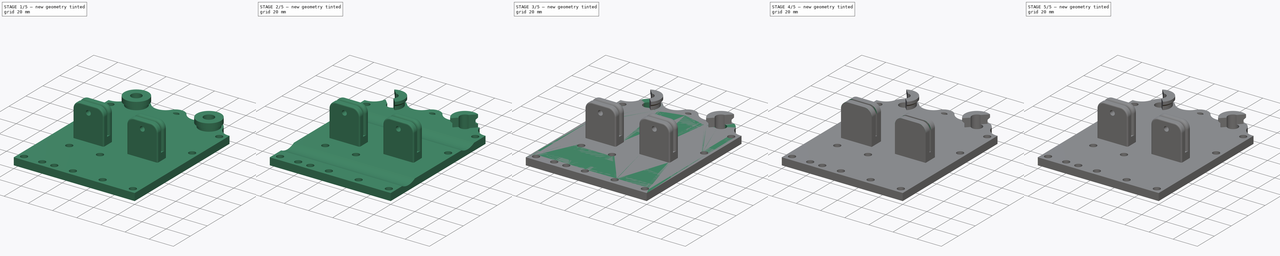
[diagram: build sequence overview — one tinted view per stage of 5, left to right]
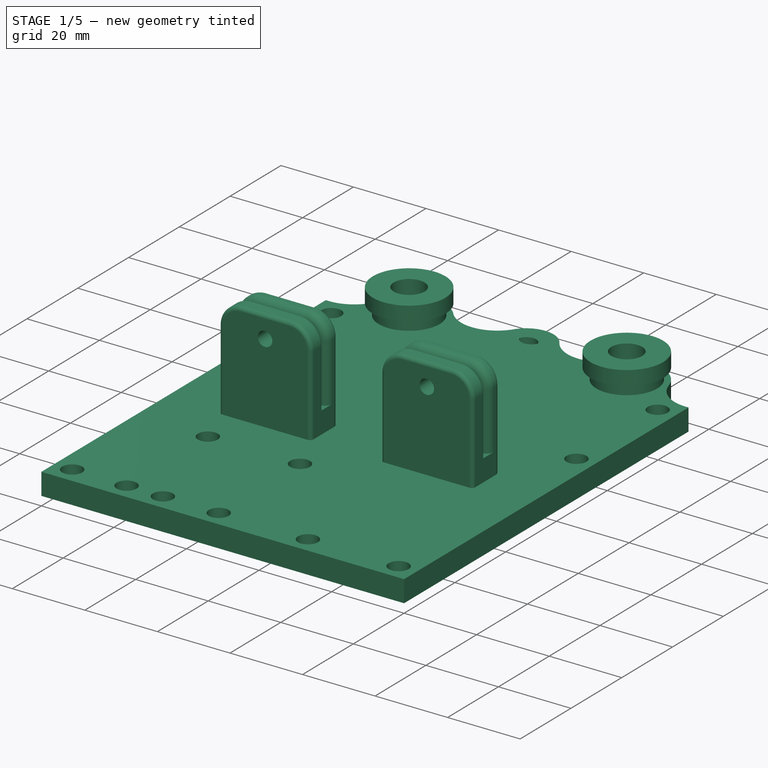
[diagram: stage 1 of 5 — iso view after this stage's code; geometry added in this stage tinted green]
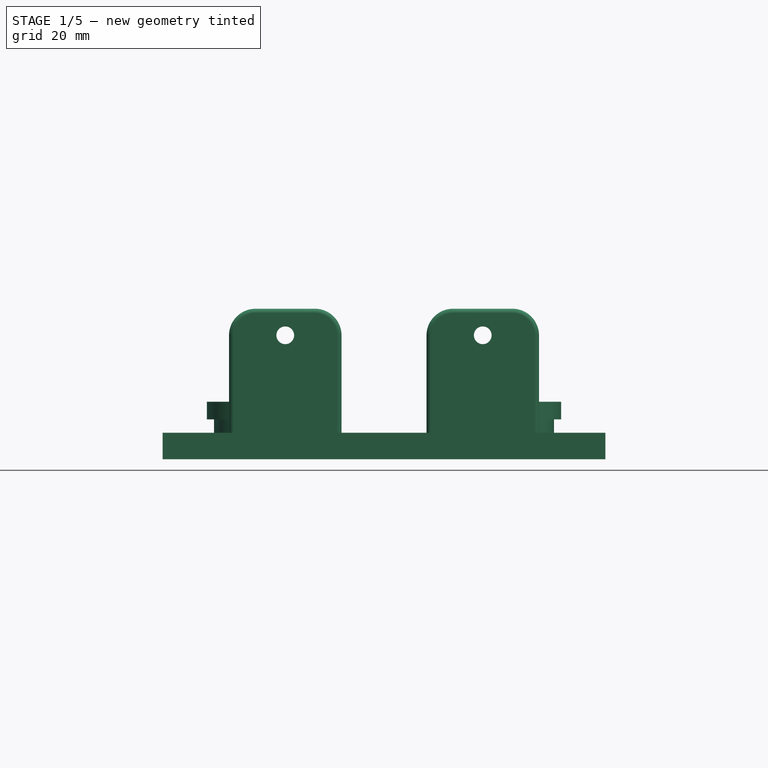
[diagram: stage 1 of 5 — front view after this stage's code; geometry added in this stage tinted green]
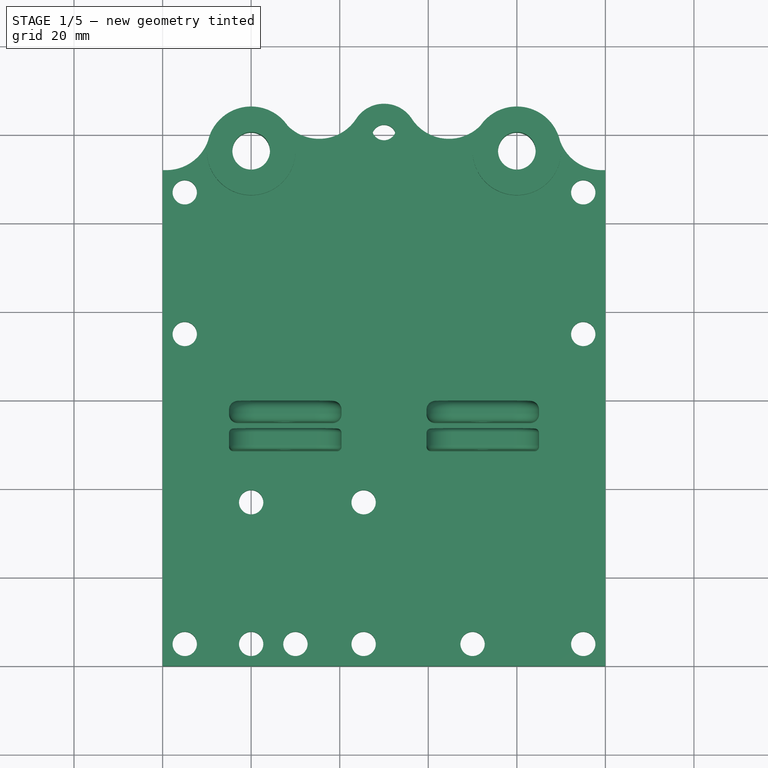
[diagram: stage 1 of 5 — top view after this stage's code; geometry added in this stage tinted green]
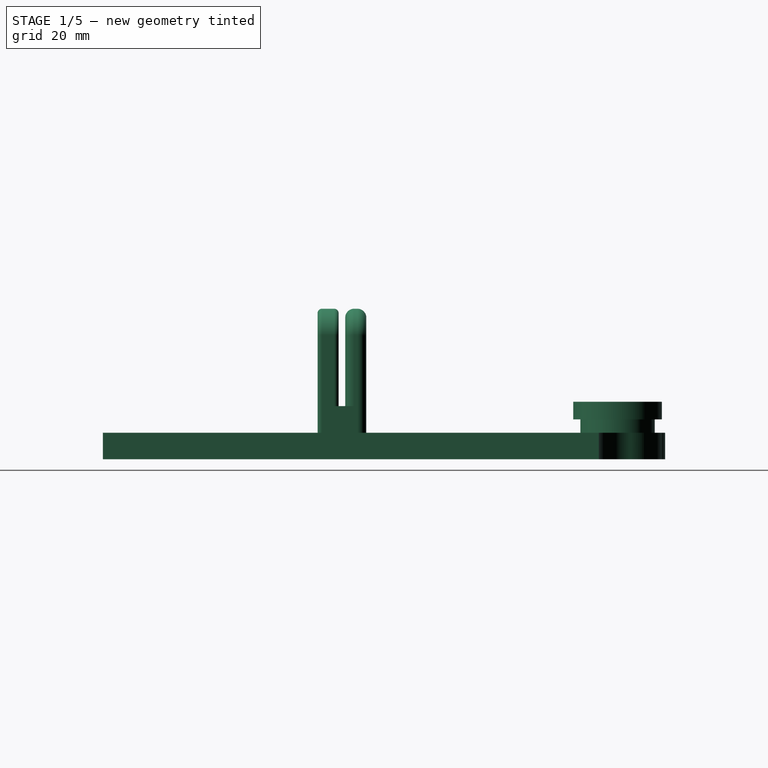
[diagram: stage 1 of 5 — right view after this stage's code; geometry added in this stage tinted green]
FCSTD DOCUMENT  (FreeCAD 0.16R5861 (Git))
Label: x_carriage_TAZ6_v0.3
License: All rights reserved
LicenseURL: http://en.wikipedia.org/wiki/All_rights_reserved
objects: Sketcher::SketchObject×15, PartDesign::Pocket×9, PartDesign::Pad×6, PartDesign::Fillet×6, Part::Feature×3, PartDesign::Chamfer×1, PartDesign::LinearPattern×1
note: 56 computed .brp shape members not serialized (recipe doc carries the construction recipe); baked Part::Feature solids carry a one-line shape summary decoded from their .brp

FEATURE [Part::Feature] Fillet003001  label="Fillet004"
  shape: bbox 100 x 127 x 34.86 mm, 99 faces (baked)
FEATURE [PartDesign::Fillet] Fillet003002
  Base = -> Fillet003001 [Edge63,Edge50,Edge54,Edge67]
  Radius = 10
FEATURE [Sketcher::SketchObject] Sketch006
  ExternalGeometry = -> [Fillet003002]
  Placement = pos=(0,0,6) rot=(0,0,1;0rad)
  Support = -> Fillet003002 [Face1]
  sketch-geometry (4):
    g0: Circle CenterX=20 CenterY=116.25 CenterZ=0 NormalX=0 NormalY=0 NormalZ=1 Radius=4.25
    g1: Circle CenterX=20 CenterY=116.25 CenterZ=0 NormalX=0 NormalY=0 NormalZ=1 Radius=8.4
    g2: Circle CenterX=80 CenterY=116.25 CenterZ=0 NormalX=0 NormalY=0 NormalZ=1 Radius=4.25
    g3: Circle CenterX=80 CenterY=116.25 CenterZ=0 NormalX=0 NormalY=0 NormalZ=1 Radius=8.4
  constraints (8):
    c: Coincident(g0,g-3)
    c: PointOnObject(g-3,g0)
    c: Coincident(g1,g0)
    c: Coincident(g2,g-4)
    c: PointOnObject(g-4,g2)
    c: Coincident(g3,g2)
    c: Equal(g3,g1)
    c: Radius(g3) = 8.4
FEATURE [PartDesign::Pad] Pad002002
  Length = 3
  Length2 = 100
  Sketch = -> Sketch006
  Type = 0
FEATURE [Sketcher::SketchObject] Sketch007
  ExternalGeometry = -> [Pad002002]
  Placement = pos=(0,0,9) rot=(0,0,1;0rad)
  Support = -> Pad002002 [Face84]
  sketch-geometry (4):
    g0: Circle CenterX=20 CenterY=116.25 CenterZ=0 NormalX=0 NormalY=0 NormalZ=1 Radius=4.25
    g1: Circle CenterX=20 CenterY=116.25 CenterZ=0 NormalX=0 NormalY=0 NormalZ=1 Radius=10
    g2: Circle CenterX=80 CenterY=116.25 CenterZ=0 NormalX=0 NormalY=0 NormalZ=1 Radius=4.25
    g3: Circle CenterX=80 CenterY=116.25 CenterZ=0 NormalX=0 NormalY=0 NormalZ=1 Radius=10
  constraints (8):
    c: Coincident(g0,g-3)
    c: Coincident(g1,g0)
    c: Coincident(g2,g-4)
    c: Coincident(g3,g2)
    c: Equal(g2,g-4)
    c: Equal(g-4,g0)
    c: Equal(g1,g3)
    c: Radius(g3) = 10
FEATURE [PartDesign::Pad] Pad002003
  Length = 4
  Length2 = 100
  Sketch = -> Sketch007
  Type = 0
FEATURE [Part::Feature] Pocket007001  label="Pocket008"
  shape: bbox 100 x 127 x 34.86 mm, 130 faces (baked)
FEATURE [Sketcher::SketchObject] Sketch014
  Placement = pos=(0,0,0) rot=(1,0,0;3.14159rad)
  Support = -> Pocket007001 [Face121]
  sketch-geometry (4):
    g0: LineSegment StartX=0 StartY=-9.5 StartZ=0 EndX=100 EndY=-9.5 EndZ=0
    g1: LineSegment StartX=100 StartY=-9.5 StartZ=0 EndX=100 EndY=-10.5 EndZ=0
    g2: LineSegment StartX=100 StartY=-10.5 StartZ=0 EndX=0 EndY=-10.5 EndZ=0
    g3: LineSegment StartX=0 StartY=-10.5 StartZ=0 EndX=0 EndY=-9.5 EndZ=0
  constraints (12):
    c: Coincident(g0,g1)
    c: Coincident(g1,g2)
    c: Coincident(g2,g3)
    c: Coincident(g3,g0)
    c: Horizontal(g0)
    c: Horizontal(g2)
    c: Vertical(g1)
    c: Vertical(g3)
    c: PointOnObject(g0,g-2)
    c: DistanceX(g0) = 100
    c: DistanceY(g1) = -1
    c: DistanceY(g-1,g0) = -9.5
FEATURE [PartDesign::Pocket] Pocket007002
  Length = 0.4
  Sketch = -> Sketch014
  Type = 0
FEATURE [PartDesign::LinearPattern] LinearPattern
  Direction = -> Sketch014 [V_Axis]
  Length = 110
  Occurrences = 12
  Originals = -> [Pocket007002]
  Reversed = true
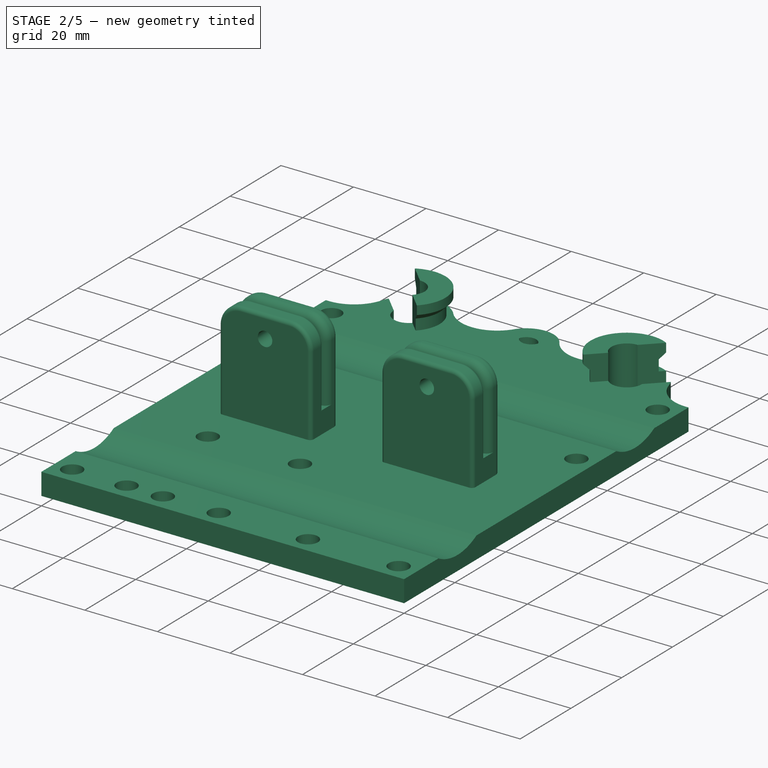
[diagram: stage 2 of 5 — iso view after this stage's code; geometry added in this stage tinted green]
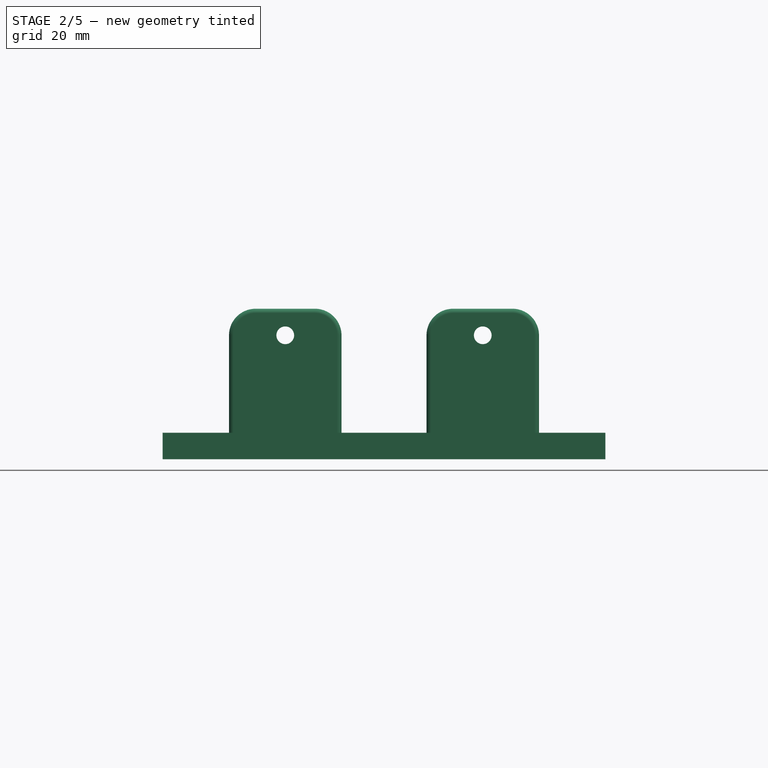
[diagram: stage 2 of 5 — front view after this stage's code; geometry added in this stage tinted green]
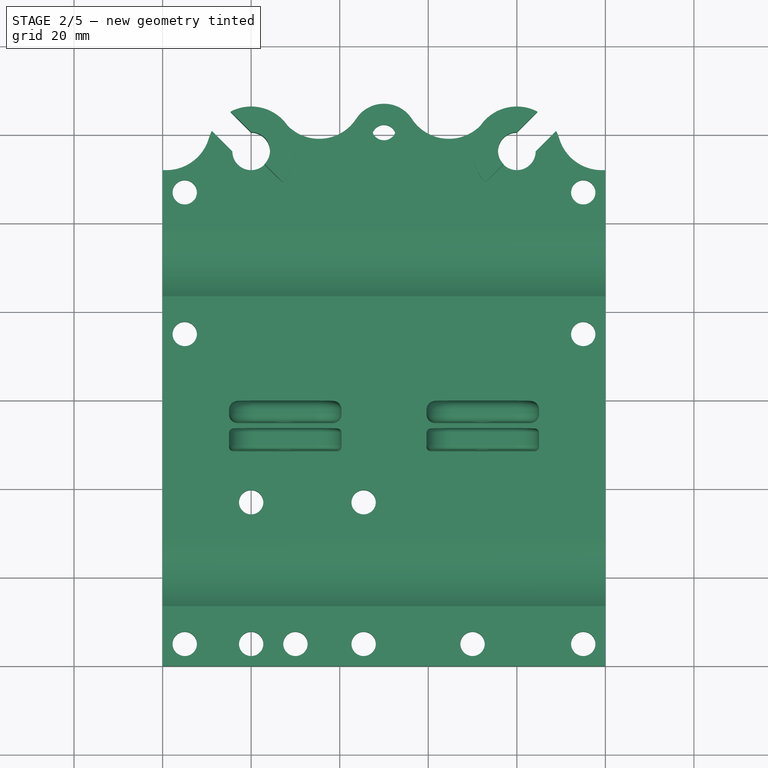
[diagram: stage 2 of 5 — top view after this stage's code; geometry added in this stage tinted green]
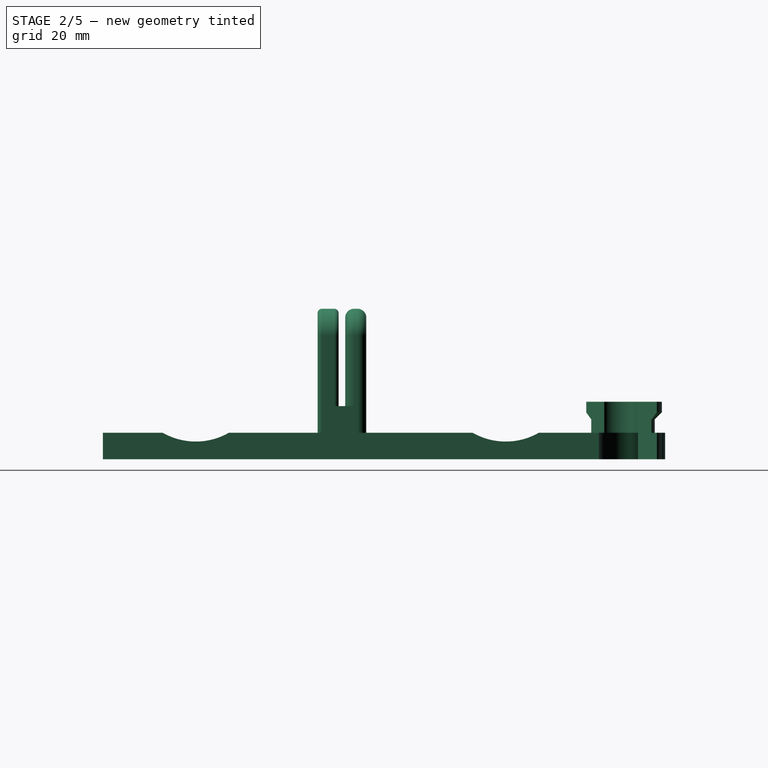
[diagram: stage 2 of 5 — right view after this stage's code; geometry added in this stage tinted green]
FEATURE [PartDesign::Chamfer] Chamfer
  Base = -> Pad002003 [Edge244,Edge245]
  Size = 1.59
FEATURE [Sketcher::SketchObject] Sketch008
  ExternalGeometry = -> [Chamfer]
  Placement = pos=(0,0,13) rot=(0,0,1;0rad)
  Support = -> Chamfer [Face113]
  sketch-geometry (8):
    g0: LineSegment StartX=0 StartY=106.25 StartZ=0 EndX=30 EndY=106.25 EndZ=0
    g1: LineSegment StartX=30 StartY=106.25 StartZ=0 EndX=10 EndY=126.25 EndZ=0
    g2: LineSegment StartX=10 StartY=126.25 StartZ=0 EndX=0 EndY=126.25 EndZ=0
    g3: LineSegment StartX=0 StartY=126.25 StartZ=0 EndX=0 EndY=106.25 EndZ=0
    g4: LineSegment StartX=100 StartY=106.25 StartZ=0 EndX=70 EndY=106.25 EndZ=0
    g5: LineSegment StartX=70 StartY=106.25 StartZ=0 EndX=90 EndY=126.25 EndZ=0
    g6: LineSegment StartX=90 StartY=126.25 StartZ=0 EndX=100 EndY=126.25 EndZ=0
    g7: LineSegment StartX=100 StartY=126.25 StartZ=0 EndX=100 EndY=106.25 EndZ=0
  constraints (24):
    c: Coincident(g0,g1)
    c: Coincident(g1,g2)
    c: Coincident(g2,g3)
    c: Coincident(g3,g0)
    c: Horizontal(g0)
    c: Horizontal(g2)
    c: Vertical(g3)
    c: PointOnObject(g0,g-2)
    c: Coincident(g4,g5)
    c: Coincident(g5,g6)
    c: Coincident(g6,g7)
    c: Coincident(g7,g4)
    c: Horizontal(g4)
    c: Horizontal(g6)
    c: Vertical(g7)
    c: PointOnObject(g4,g-3)
    c: Angle(g1,g0) = 0.785398
    c: Angle(g4,g5) = 0.785398
    c: PointOnObject(g-4,g5)
    c: PointOnObject(g-5,g1)
    c: Tangent(g0,g-5)
    c: Tangent(g4,g-4)
    c: Equal(g7,g3)
    c: DistanceY(g7) = -20
FEATURE [PartDesign::Pocket] Pocket003
  Length = 7
  Sketch = -> Sketch008
  Type = 0
FEATURE [Sketcher::SketchObject] Sketch009
  ExternalGeometry = -> [Pocket003]
  Placement = pos=(0,0,13) rot=(0,0,1;0rad)
  Support = -> Pocket003 [Face9]
  sketch-geometry (8):
    g0: LineSegment StartX=22.1213 StartY=118.371 StartZ=0 EndX=17.8787 EndY=114.129 EndZ=0
    g1: LineSegment StartX=17.8787 StartY=114.129 StartZ=0 EndX=7.27208 EndY=124.735 EndZ=0
    g2: LineSegment StartX=7.27208 StartY=124.735 StartZ=0 EndX=11.5147 EndY=128.978 EndZ=0
    g3: LineSegment StartX=11.5147 StartY=128.978 StartZ=0 EndX=22.1213 EndY=118.371 EndZ=0
    g4: LineSegment StartX=77.8787 StartY=118.371 StartZ=0 EndX=82.1213 EndY=114.129 EndZ=0
    g5: LineSegment StartX=82.1213 StartY=114.129 StartZ=0 EndX=92.7279 EndY=124.735 EndZ=0
    g6: LineSegment StartX=92.7279 StartY=124.735 StartZ=0 EndX=88.4853 EndY=128.978 EndZ=0
    g7: LineSegment StartX=88.4853 StartY=128.978 StartZ=0 EndX=77.8787 EndY=118.371 EndZ=0
  constraints (24):
    c: Coincident(g0,g1)
    c: Coincident(g1,g2)
    c: Coincident(g2,g3)
    c: Coincident(g3,g0)
    c: Coincident(g4,g5)
    c: Coincident(g5,g6)
    c: Coincident(g6,g7)
    c: Coincident(g7,g4)
    c: Parallel(g7,g-4)
    c: Parallel(g-4,g5)
    c: Perpendicular(g7,g4)
    c: Perpendicular(g6,g7)
    c: Parallel(g-3,g1)
    c: Perpendicular(g0,g3)
    c: Perpendicular(g0,g1)
    c: Perpendicular(g2,g1)
    c: Distance(g2) = 6
    c: Equal(g6,g2)
    c: PointOnObject(g-6,g4)
    c: PointOnObject(g-5,g0)
    c: Distance(g-5,g0) = 3
    c: Distance(g-6,g4) = 3
    c: Equal(g1,g7)
    c: Distance(g7) = 15
FEATURE [PartDesign::Pocket] Pocket004
  Length = 5
  Sketch = -> Sketch009
  Type = 1
FEATURE [Sketcher::SketchObject] Sketch010
  ExternalGeometry = -> [Pocket004]
  Placement = pos=(0,0,0) rot=(0.57735,-0.57735,-0.57735;2.0944rad)
  Support = -> Pocket004 [Face27]
  sketch-geometry (2):
    g0: Circle CenterX=-91 CenterY=19 CenterZ=0 NormalX=0 NormalY=0 NormalZ=1 Radius=15
    g1: Circle CenterX=-21 CenterY=19 CenterZ=0 NormalX=0 NormalY=0 NormalZ=1 Radius=15
  constraints (6):
    c: Equal(g1,g0)
    c: DistanceX(g-3,g0) = 21
    c: DistanceX(g-1,g1) = -21
    c: Radius(g0) = 15
    c: DistanceY(g-3,g0) = 13
    c: DistanceY(g-3,g1) = 13
FEATURE [PartDesign::Pocket] Pocket005
  Length = 5
  Sketch = -> Sketch010
  Type = 1
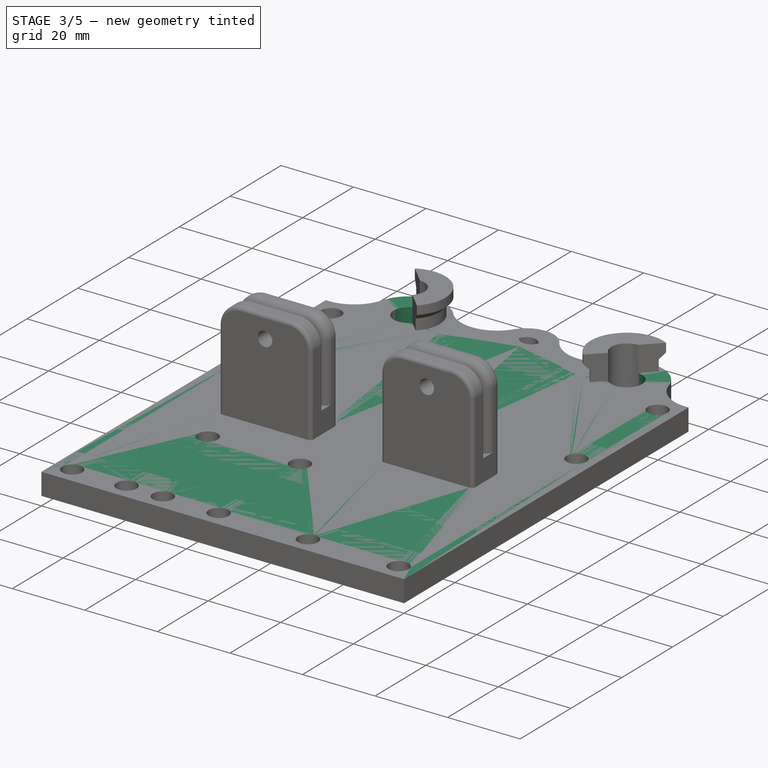
[diagram: stage 3 of 5 — iso view after this stage's code; geometry added in this stage tinted green]
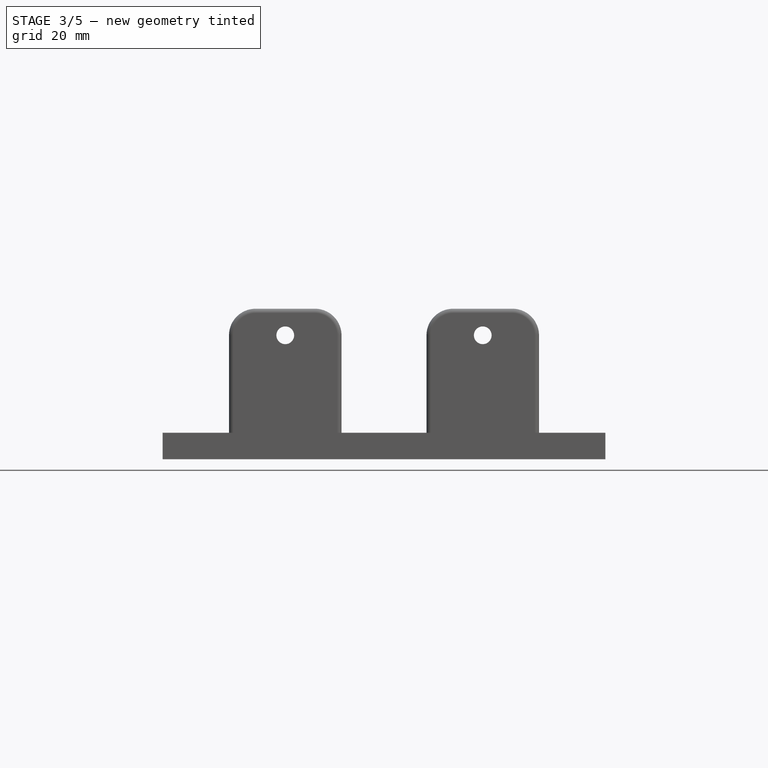
[diagram: stage 3 of 5 — front view after this stage's code; geometry added in this stage tinted green]
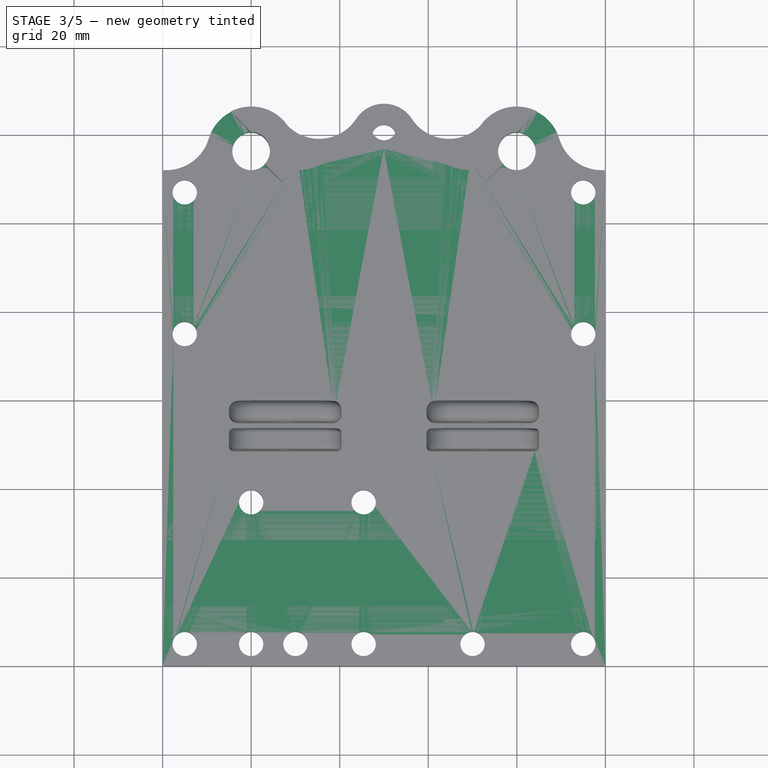
[diagram: stage 3 of 5 — top view after this stage's code; geometry added in this stage tinted green]
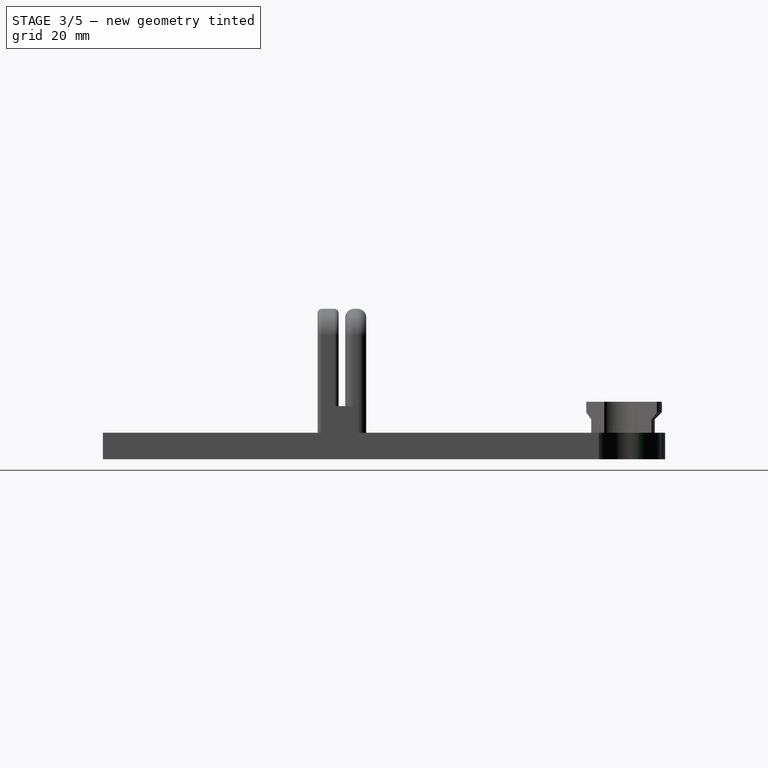
[diagram: stage 3 of 5 — right view after this stage's code; geometry added in this stage tinted green]
FEATURE [Part::Feature] Pad002001  label="Pad003"
  shape: bbox 100 x 127 x 34.49 mm, 99 faces (baked)
FEATURE [PartDesign::Fillet] Fillet003
  Base = -> Pad002001 [Edge60,Edge68]
  Radius = 13
FEATURE [Sketcher::SketchObject] Sketch011
  Placement = pos=(0,0,6) rot=(0,0,1;0rad)
  Support = -> Pocket005 [Face58]
  sketch-geometry (1):
    g0: Circle CenterX=0 CenterY=49 CenterZ=0 NormalX=0 NormalY=0 NormalZ=1 Radius=14
  constraints (3):
    c: PointOnObject(g0,g-2)
    c: Radius(g0) = 14
    c: DistanceY(g-1,g0) = 49
FEATURE [PartDesign::Pocket] Pocket006
  Length = 5
  Sketch = -> Sketch011
  Type = 1
FEATURE [PartDesign::Fillet] Fillet003003
  Base = -> Pocket006 [Edge116,Edge122]
  Radius = 11
FEATURE [Sketcher::SketchObject] Sketch012
  ExternalGeometry = -> [Fillet003003]
  Placement = pos=(0,0,6) rot=(0,0,1;0rad)
  Support = -> Fillet003003 [Face45]
  sketch-geometry (1):
    g0: Circle CenterX=50 CenterY=119.5 CenterZ=0 NormalX=0 NormalY=0 NormalZ=1 Radius=4
  constraints (2):
    c: Coincident(g0,g-3)
    c: Radius(g0) = 4
FEATURE [PartDesign::Pad] Pad002004
  Length = 6
  Length2 = 100
  Reversed = true
  Sketch = -> Sketch012
  Type = 0
FEATURE [Sketcher::SketchObject] Sketch013
  ExternalGeometry = -> [Pad002004]
  Placement = pos=(0,0,6) rot=(0,0,1;0rad)
  Support = -> Pad002004 [Face8]
  sketch-geometry (2):
    g0: LineSegment [constr] StartX=50 StartY=119.5 StartZ=0 EndX=50 EndY=121.5 EndZ=0
    g1: Circle CenterX=50 CenterY=121.5 CenterZ=0 NormalX=0 NormalY=0 NormalZ=1 Radius=2.75
  constraints (5):
    c: Coincident(g0,g-3)
    c: Vertical(g0)
    c: Coincident(g1,g0)
    c: Equal(g-3,g1)
    c: DistanceY(g0) = 2
FEATURE [PartDesign::Pocket] Pocket007
  Length = 5
  Sketch = -> Sketch013
  Type = 1
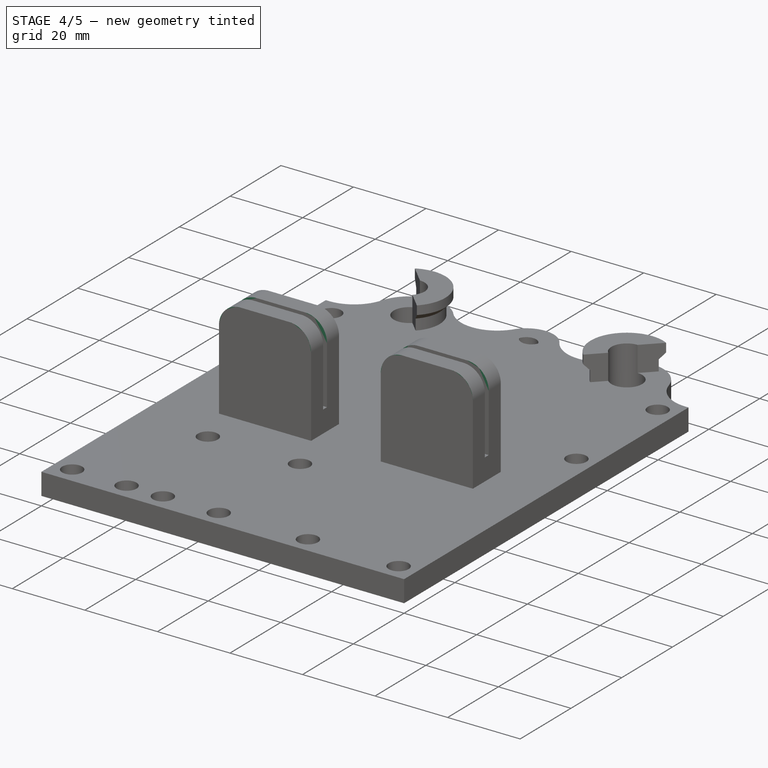
[diagram: stage 4 of 5 — iso view after this stage's code; geometry added in this stage tinted green]
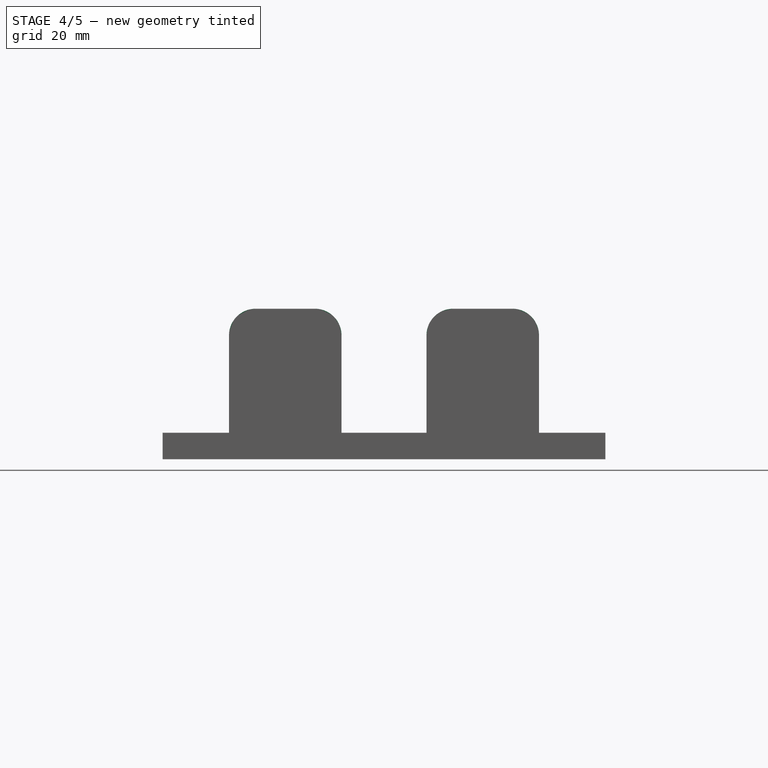
[diagram: stage 4 of 5 — front view after this stage's code; geometry added in this stage tinted green]
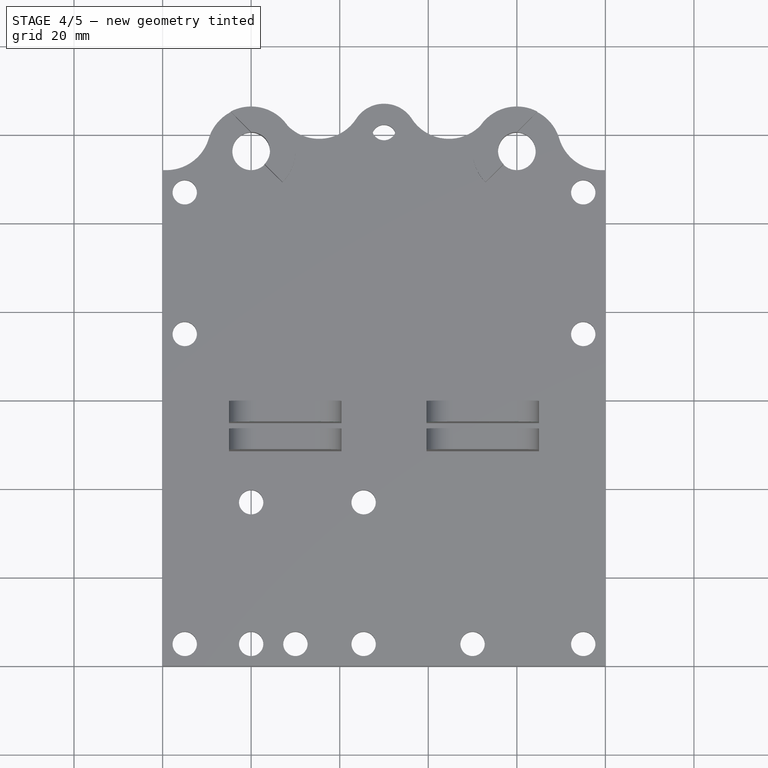
[diagram: stage 4 of 5 — top view after this stage's code; geometry added in this stage tinted green]
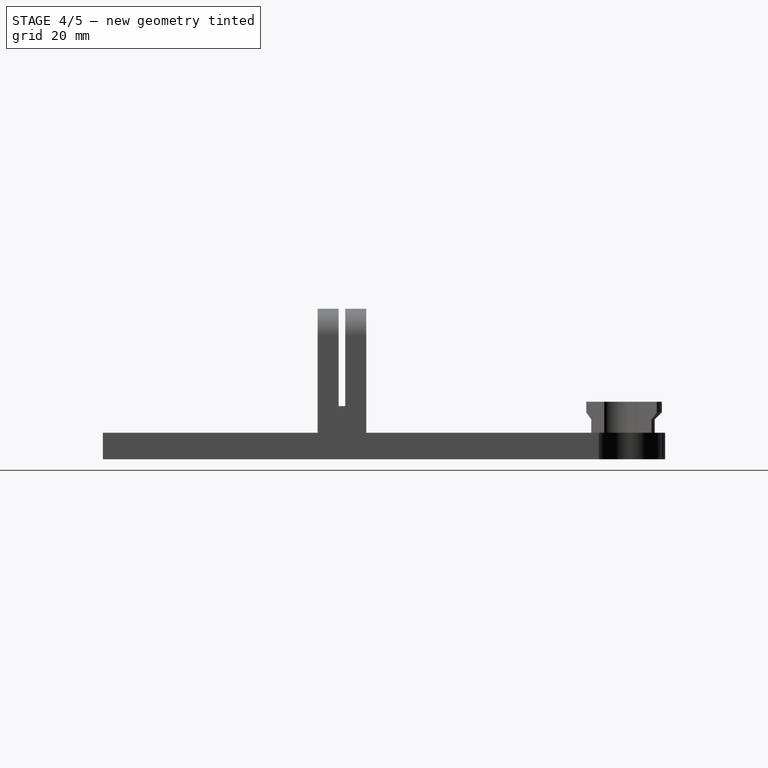
[diagram: stage 4 of 5 — right view after this stage's code; geometry added in this stage tinted green]
FEATURE [Sketcher::SketchObject] Sketch
  sketch-geometry (27):
    g0: LineSegment StartX=0 StartY=0 StartZ=0 EndX=100 EndY=0 EndZ=0
    g1: LineSegment StartX=100 StartY=0 StartZ=0 EndX=100 EndY=112 EndZ=0
    g2: LineSegment StartX=100 StartY=112 StartZ=0 EndX=0 EndY=112 EndZ=0
    g3: LineSegment StartX=0 StartY=112 StartZ=0 EndX=0 EndY=0 EndZ=0
    g4: LineSegment [constr] StartX=5 StartY=107 StartZ=0 EndX=95 EndY=107 EndZ=0
    g5: LineSegment [constr] StartX=95 StartY=107 StartZ=0 EndX=95 EndY=75 EndZ=0
    g6: LineSegment [constr] StartX=95 StartY=75 StartZ=0 EndX=5 EndY=75 EndZ=0
    g7: LineSegment [constr] StartX=5 StartY=75 StartZ=0 EndX=5 EndY=107 EndZ=0
    g8: LineSegment [constr] StartX=20 StartY=5 StartZ=0 EndX=45.4 EndY=5 EndZ=0
    g9: LineSegment [constr] StartX=45.4 StartY=5 StartZ=0 EndX=45.4 EndY=37 EndZ=0
    g10: LineSegment [constr] StartX=45.4 StartY=37 StartZ=0 EndX=20 EndY=37 EndZ=0
    g11: LineSegment [constr] StartX=20 StartY=37 StartZ=0 EndX=20 EndY=5 EndZ=0
    g12: Circle CenterX=5 CenterY=107 CenterZ=0 NormalX=0 NormalY=0 NormalZ=1 Radius=2.75
    g13: Circle CenterX=95 CenterY=107 CenterZ=0 NormalX=0 NormalY=0 NormalZ=1 Radius=2.75
    g14: Circle CenterX=95 CenterY=75 CenterZ=0 NormalX=0 NormalY=0 NormalZ=1 Radius=2.75
    g15: Circle CenterX=5 CenterY=75 CenterZ=0 NormalX=0 NormalY=0 NormalZ=1 Radius=2.75
    g16: Circle CenterX=20 CenterY=5 CenterZ=0 NormalX=0 NormalY=0 NormalZ=1 Radius=2.75
    g17: Circle CenterX=20 CenterY=37 CenterZ=0 NormalX=0 NormalY=0 NormalZ=1 Radius=2.75
    g18: Circle CenterX=45.4 CenterY=37 CenterZ=0 NormalX=0 NormalY=0 NormalZ=1 Radius=2.75
    g19: Circle CenterX=45.4 CenterY=5 CenterZ=0 NormalX=0 NormalY=0 NormalZ=1 Radius=2.75
    g20: Circle CenterX=5 CenterY=5 CenterZ=0 NormalX=0 NormalY=0 NormalZ=1 Radius=2.75
    g21: Circle CenterX=95 CenterY=5 CenterZ=0 NormalX=0 NormalY=0 NormalZ=1 Radius=2.75
    g22: Circle CenterX=70 CenterY=5 CenterZ=0 NormalX=0 NormalY=0 NormalZ=1 Radius=2.75
    g23: Circle CenterX=30 CenterY=5 CenterZ=0 NormalX=0 NormalY=0 NormalZ=1 Radius=2.75
    g24: LineSegment [constr] StartX=5 StartY=5 StartZ=0 EndX=30 EndY=5 EndZ=0
    g25: LineSegment [constr] StartX=30 StartY=5 StartZ=0 EndX=70 EndY=5 EndZ=0
    g26: LineSegment [constr] StartX=70 StartY=5 StartZ=0 EndX=95 EndY=5 EndZ=0
  constraints (69):
    c: Coincident(g0,g1)
    c: Coincident(g1,g2)
    c: Coincident(g2,g3)
    c: Coincident(g3,g0)
    c: Horizontal(g0)
    c: Horizontal(g2)
    c: Vertical(g1)
    c: Vertical(g3)
    c: Coincident(g0,g-1)
    c: DistanceX(g0) = 100
    c: Coincident(g4,g5)
    c: Coincident(g5,g6)
    c: Coincident(g6,g7)
    c: Coincident(g7,g4)
    c: Horizontal(g4)
    c: Horizontal(g6)
    c: Vertical(g5)
    c: Vertical(g7)
    c: Coincident(g8,g9)
    c: Coincident(g9,g10)
    c: Coincident(g10,g11)
    c: Coincident(g11,g8)
    c: Horizontal(g8)
    c: Horizontal(g10)
    c: Vertical(g9)
    c: Vertical(g11)
    c: Equal(g5,g9)
    c: DistanceY(g5) = -32
    c: DistanceX(g4,g1) = 5
    c: DistanceY(g4,g1) = 5
    c: DistanceX(g4,g2) = -5
    c: DistanceX(g10) = -25.4
    c: DistanceY(g8,g0) = -5
    c: DistanceY(g8,g5) = 70
    c: DistanceX(g-1,g8) = 20
    c: Coincident(g12,g4)
    c: Coincident(g13,g4)
    c: Coincident(g14,g5)
    c: Coincident(g15,g6)
    c: Coincident(g16,g8)
    c: Coincident(g17,g10)
    c: Coincident(g18,g9)
    c: Coincident(g19,g8)
    c: Equal(g19,g16)
    c: Equal(g16,g17)
    c: Equal(g17,g18)
    c: Equal(g18,g14)
    c: Equal(g14,g13)
    c: Equal(g13,g12)
    c: Equal(g12,g15)
    c: Radius(g13) = 2.75
    c: Equal(g20,g16)
    c: Equal(g16,g23)
    c: Equal(g23,g22)
    c: Equal(g22,g21)
    c: DistanceY(g21,g0) = -5
    c: DistanceX(g21,g0) = 5
    c: DistanceX(g-1,g20) = 5
    c: Coincident(g24,g20)
    c: Coincident(g24,g23)
    c: Coincident(g24,g25)
    c: Coincident(g25,g22)
    c: Horizontal(g25)
    c: Coincident(g25,g26)
    c: Coincident(g26,g21)
    c: Horizontal(g24)
    c: Horizontal(g26)
    c: DistanceX(g-1,g23) = 30
    c: DistanceX(g22,g0) = 30
FEATURE [PartDesign::Pad] Pad
  Length = 6
  Length2 = 100
  Sketch = -> Sketch
  Type = 0
FEATURE [Sketcher::SketchObject] Sketch001
  ExternalGeometry = -> [Pad]
  Placement = pos=(0,0,6) rot=(0,0,1;0rad)
  Support = -> Pad [Face18]
  sketch-geometry (8):
    g0: LineSegment StartX=15 StartY=59.5 StartZ=0 EndX=40.4 EndY=59.5 EndZ=0
    g1: LineSegment StartX=40.4 StartY=59.5 StartZ=0 EndX=40.4 EndY=48.5 EndZ=0
    g2: LineSegment StartX=40.4 StartY=48.5 StartZ=0 EndX=15 EndY=48.5 EndZ=0
    g3: LineSegment StartX=15 StartY=48.5 StartZ=0 EndX=15 EndY=59.5 EndZ=0
    g4: LineSegment StartX=59.6 StartY=59.5 StartZ=0 EndX=85 EndY=59.5 EndZ=0
    g5: LineSegment StartX=85 StartY=59.5 StartZ=0 EndX=85 EndY=48.5 EndZ=0
    g6: LineSegment StartX=85 StartY=48.5 StartZ=0 EndX=59.6 EndY=48.5 EndZ=0
    g7: LineSegment StartX=59.6 StartY=48.5 StartZ=0 EndX=59.6 EndY=59.5 EndZ=0
  constraints (24):
    c: Coincident(g0,g1)
    c: Coincident(g1,g2)
    c: Coincident(g2,g3)
    c: Coincident(g3,g0)
    c: Horizontal(g0)
    c: Horizontal(g2)
    c: Vertical(g1)
    c: Vertical(g3)
    c: Coincident(g4,g5)
    c: Coincident(g5,g6)
    c: Coincident(g6,g7)
    c: Coincident(g7,g4)
    c: Horizontal(g4)
    c: Horizontal(g6)
    c: Vertical(g5)
    c: Vertical(g7)
    c: Equal(g3,g7)
    c: DistanceY(g3) = 11
    c: Equal(g2,g6)
    c: DistanceX(g4) = 25.4
    c: DistanceX(g5,g-3) = 15
    c: DistanceX(g-1,g2) = 15
    c: PointOnObject(g0,g4)
    c: DistanceY(g-1,g2) = 48.5
FEATURE [PartDesign::Pad] Pad001
  Length = 28
  Length2 = 100
  Sketch = -> Sketch001
  Type = 0
FEATURE [Sketcher::SketchObject] Sketch002
  ExternalGeometry = -> [Pad001]
  Placement = pos=(0,0,34) rot=(0,0,1;0rad)
  Support = -> Pad001 [Face28]
  sketch-geometry (4):
    g0: LineSegment StartX=15 StartY=54.75 StartZ=0 EndX=85 EndY=54.75 EndZ=0
    g1: LineSegment StartX=85 StartY=54.75 StartZ=0 EndX=85 EndY=53.25 EndZ=0
    g2: LineSegment StartX=85 StartY=53.25 StartZ=0 EndX=15 EndY=53.25 EndZ=0
    g3: LineSegment StartX=15 StartY=53.25 StartZ=0 EndX=15 EndY=54.75 EndZ=0
  constraints (12):
    c: Coincident(g0,g1)
    c: Coincident(g1,g2)
    c: Coincident(g2,g3)
    c: Coincident(g3,g0)
    c: Horizontal(g0)
    c: Horizontal(g2)
    c: Vertical(g1)
    c: Vertical(g3)
    c: PointOnObject(g0,g-3)
    c: PointOnObject(g1,g-4)
    c: DistanceY(g2,g0) = 1.5
    c: DistanceY(g-3,g2) = 4.75
FEATURE [PartDesign::Pocket] Pocket
  Length = 22
  Sketch = -> Sketch002
  Type = 0
FEATURE [PartDesign::Fillet] Fillet
  Base = -> Pocket [Edge84,Edge67,Edge81,Edge77,Edge88,Edge58,Edge62,Edge71]
  Radius = 6
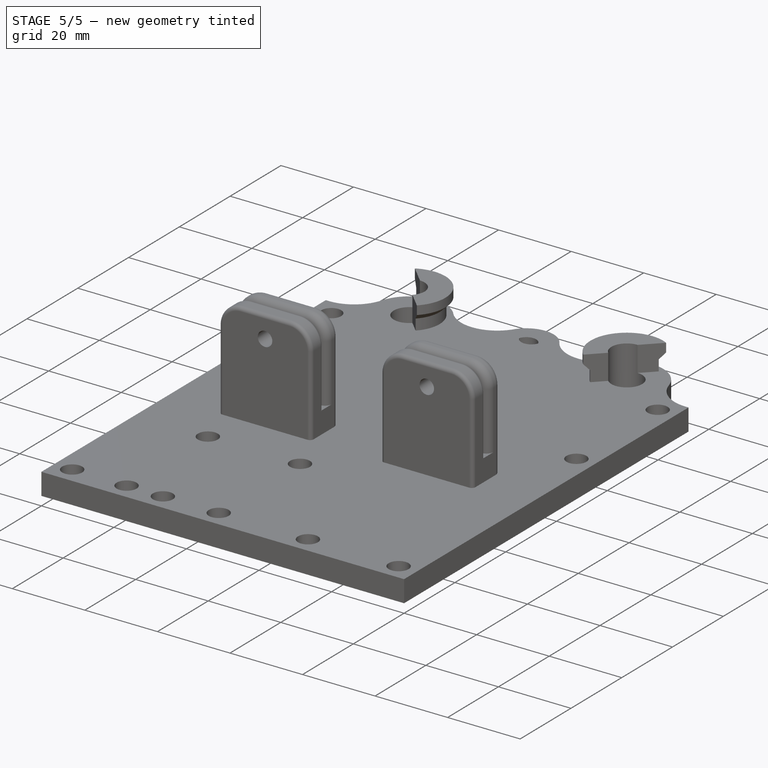
[diagram: stage 5 of 5 — iso view after this stage's code; geometry added in this stage tinted green]
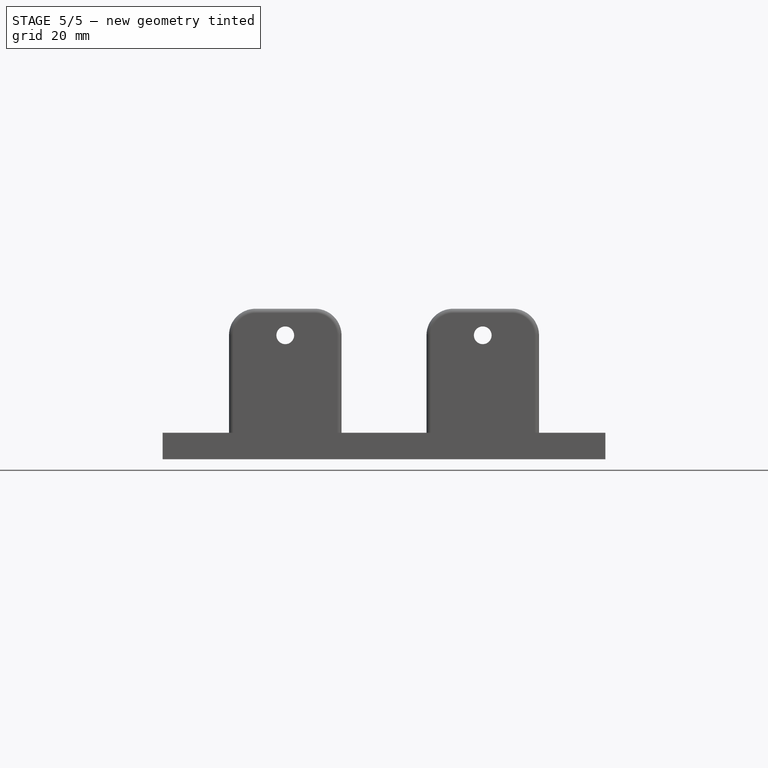
[diagram: stage 5 of 5 — front view after this stage's code; geometry added in this stage tinted green]
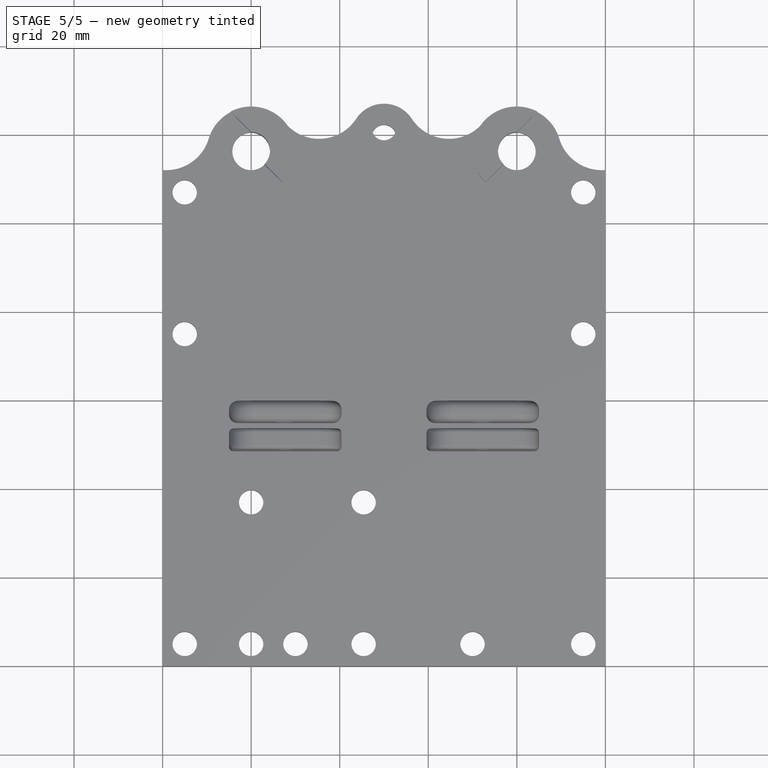
[diagram: stage 5 of 5 — top view after this stage's code; geometry added in this stage tinted green]
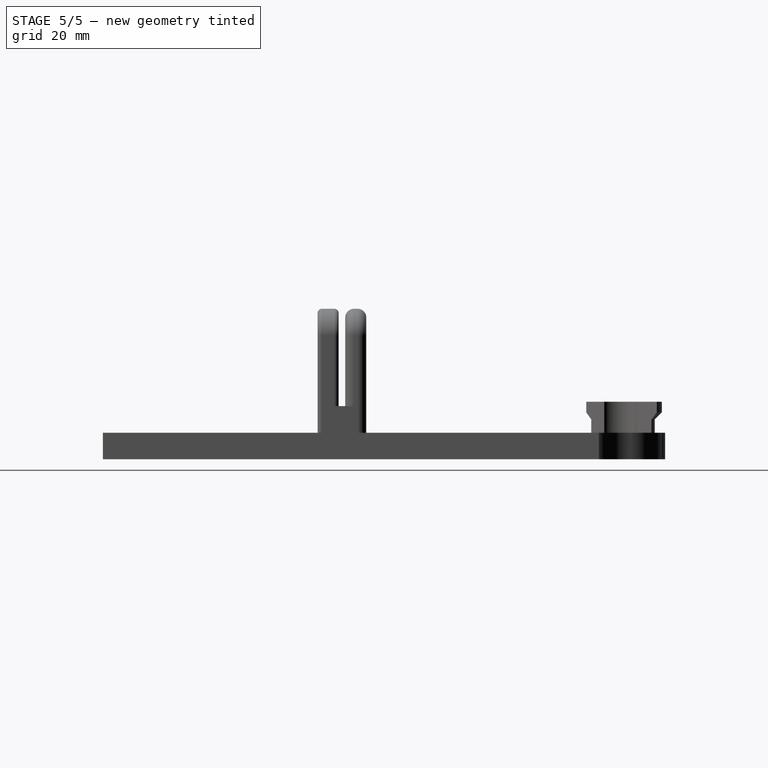
[diagram: stage 5 of 5 — right view after this stage's code; geometry added in this stage tinted green]
FEATURE [PartDesign::Fillet] Fillet001
  Base = -> Fillet [Edge104,Edge88,Edge52,Edge42]
  Radius = 2
FEATURE [PartDesign::Fillet] Fillet002
  Base = -> Fillet001 [Edge114,Edge113,Edge53,Edge41]
  Radius = 1
FEATURE [Sketcher::SketchObject] Sketch003
  ExternalGeometry = -> [Fillet002]
  Placement = pos=(0,59.5,0) rot=(0,0.707107,0.707107;3.14159rad)
  Support = -> Fillet002 [Face35]
  sketch-geometry (6):
    g0: Circle CenterX=-72.3 CenterY=28 CenterZ=0 NormalX=0 NormalY=0 NormalZ=1 Radius=2
    g1: Circle CenterX=-27.7 CenterY=28 CenterZ=0 NormalX=0 NormalY=0 NormalZ=1 Radius=2
    g2: LineSegment [constr] StartX=-79 StartY=32 StartZ=0 EndX=-72.3 EndY=28 EndZ=0
    g3: LineSegment [constr] StartX=-72.3 StartY=28 StartZ=0 EndX=-65.6 EndY=32 EndZ=0
    g4: LineSegment [constr] StartX=-34.4 StartY=32 StartZ=0 EndX=-27.7 EndY=28 EndZ=0
    g5: LineSegment [constr] StartX=-27.7 StartY=28 StartZ=0 EndX=-21 EndY=32 EndZ=0
  constraints (14):
    c: Coincident(g-4,g2)
    c: Coincident(g2,g0)
    c: Coincident(g2,g3)
    c: Coincident(g3,g-4)
    c: Coincident(g-5,g4)
    c: Coincident(g4,g1)
    c: Coincident(g4,g5)
    c: Coincident(g5,g-5)
    c: Equal(g4,g5)
    c: Equal(g5,g2)
    c: Equal(g3,g2)
    c: DistanceY(g-3,g0) = 22
    c: Radius(g0) = 2
    c: Equal(g0,g1)
FEATURE [PartDesign::Pocket] Pocket001
  Length = 5
  Sketch = -> Sketch003
  Type = 1
FEATURE [Sketcher::SketchObject] Sketch004
  ExternalGeometry = -> [Pocket001]
  Placement = pos=(0,59.5,0) rot=(0,0.707107,0.707107;3.14159rad)
  Support = -> Pocket001 [Face11]
  sketch-geometry (2):
    g0: Circle CenterX=-72.3 CenterY=28 CenterZ=0 NormalX=0 NormalY=0 NormalZ=1 Radius=2.75
    g1: Circle CenterX=-27.7 CenterY=28 CenterZ=0 NormalX=0 NormalY=0 NormalZ=1 Radius=2.75
  constraints (4):
    c: Coincident(g0,g-3)
    c: Coincident(g1,g-4)
    c: Radius(g1) = 2.75
    c: Equal(g1,g0)
FEATURE [PartDesign::Pocket] Pocket002
  Length = 5
  Sketch = -> Sketch004
  Type = 0
FEATURE [Sketcher::SketchObject] Sketch005
  ExternalGeometry = -> [Pocket002]
  Placement = pos=(0,0,6) rot=(0,0,1;0rad)
  Support = -> Pocket002 [Face2]
  sketch-geometry (11):
    g0: Circle CenterX=50 CenterY=119.5 CenterZ=0 NormalX=0 NormalY=0 NormalZ=1 Radius=2.75
    g1: LineSegment [constr] StartX=0 StartY=112 StartZ=0 EndX=50 EndY=119.5 EndZ=0
    g2: LineSegment [constr] StartX=50 StartY=119.5 StartZ=0 EndX=100 EndY=112 EndZ=0
    g3: ArcOfCircle CenterX=50 CenterY=119.5 CenterZ=0 NormalX=0 NormalY=0 NormalZ=1 Radius=7.5 StartAngle=0 EndAngle=3.14159
    g4: ArcOfCircle CenterX=50 CenterY=112 CenterZ=0 NormalX=0 NormalY=0 NormalZ=1 Radius=7.5 StartAngle=3.14159 EndAngle=6.28319
    g5: LineSegment StartX=42.5 StartY=119.5 StartZ=0 EndX=42.5 EndY=112 EndZ=0
    g6: LineSegment StartX=57.5 StartY=119.5 StartZ=0 EndX=57.5 EndY=112 EndZ=0
    g7: Circle CenterX=20 CenterY=116.25 CenterZ=0 NormalX=0 NormalY=0 NormalZ=1 Radius=4.25
    g8: Circle CenterX=80 CenterY=116.25 CenterZ=0 NormalX=0 NormalY=0 NormalZ=1 Radius=4.25
    g9: Circle CenterX=20 CenterY=116.25 CenterZ=0 NormalX=0 NormalY=0 NormalZ=1 Radius=10
    g10: Circle CenterX=80 CenterY=116.25 CenterZ=0 NormalX=0 NormalY=0 NormalZ=1 Radius=10
  constraints (26):
    c: Coincident(g-3,g1)
    c: Coincident(g1,g0)
    c: Coincident(g1,g2)
    c: Coincident(g2,g-3)
    c: Equal(g2,g1)
    c: DistanceY(g0,g1) = -7.5
    c: Tangent(g3,g6) = 1.5708
    c: Tangent(g3,g5) = -1.5708
    c: Tangent(g5,g4) = -1.5708
    c: Tangent(g6,g4) = 1.5708
    c: Vertical(g5)
    c: Equal(g3,g4)
    c: Coincident(g3,g0)
    c: PointOnObject(g4,g-3)
    c: Radius(g3) = 7.5
    c: Radius(g0) = 2.75
    c: Tangent(g7,g-3)
    c: Tangent(g8,g-3)
    c: Radius(g8) = 4.25
    c: Equal(g8,g7)
    c: DistanceX(g8,g2) = 20
    c: DistanceX(g7,g1) = -20
    c: Coincident(g9,g7)
    c: Coincident(g10,g8)
    c: Equal(g10,g9)
    c: Radius(g10) = 10
FEATURE [PartDesign::Pad] Pad002
  Length = 6
  Length2 = 100
  Reversed = true
  Sketch = -> Sketch005
  Type = 0
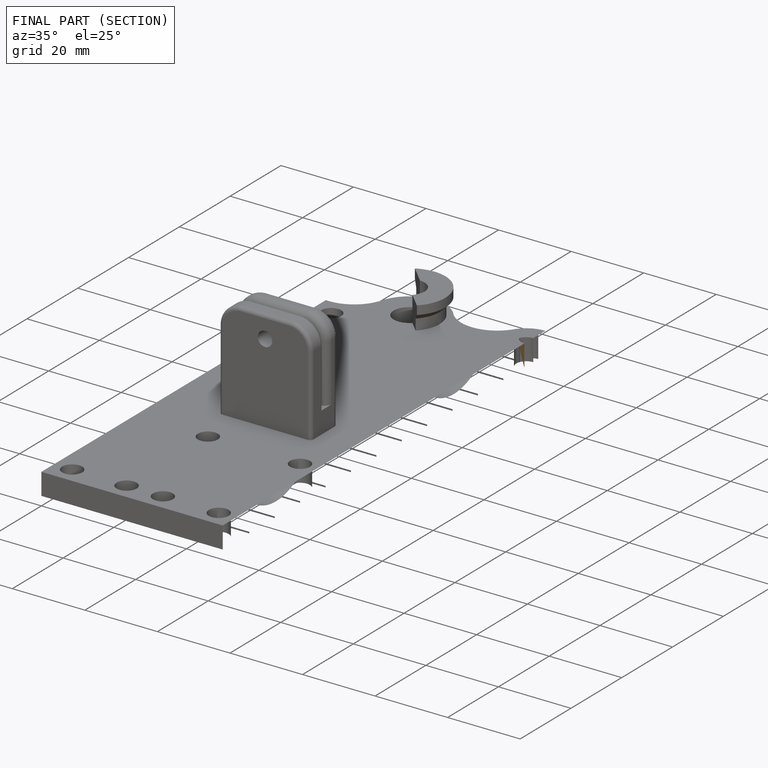
[diagram: finished part — half-section view (interior)]
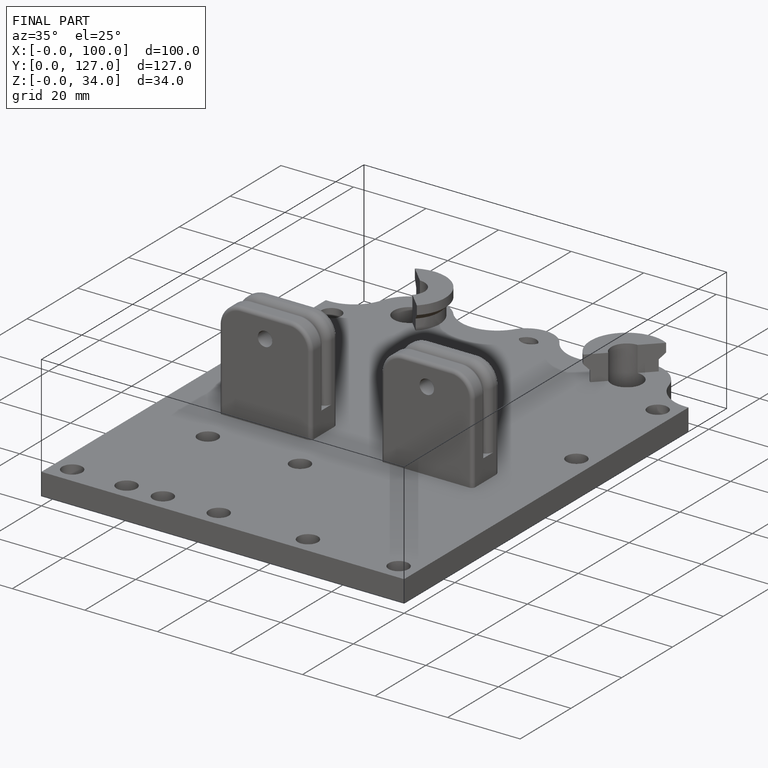
[diagram: finished part — iso view with bounding-box wireframe]
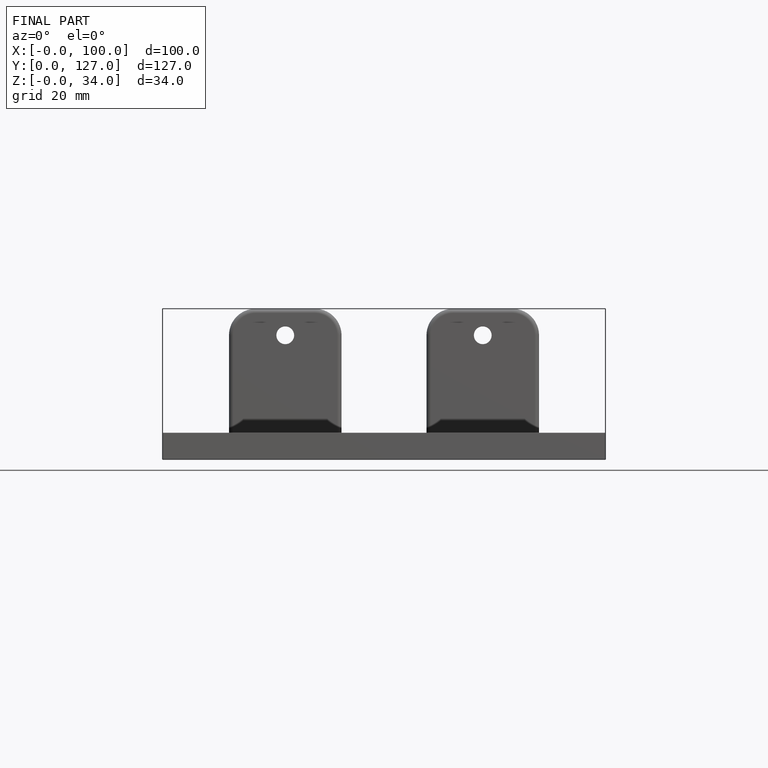
[diagram: finished part — front view with bounding-box wireframe]
